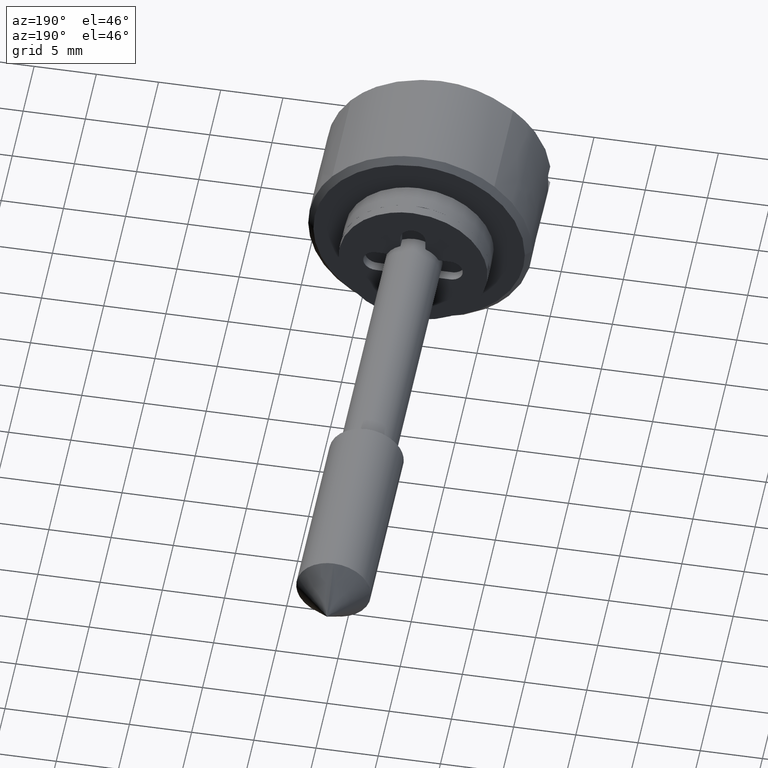
[diagram: clean part render]
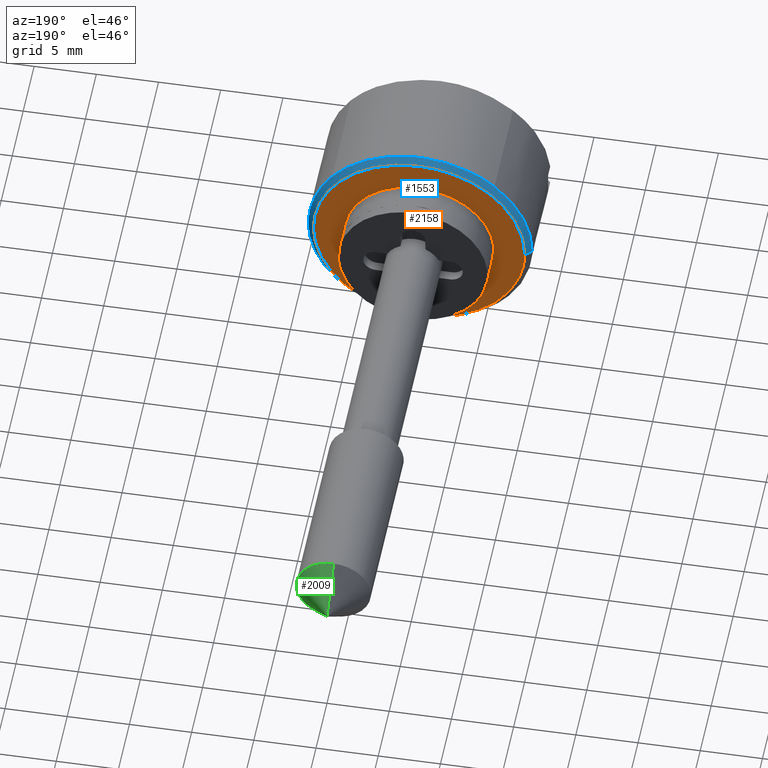
[diagram: same view with three faces highlighted in distinct colors, each labeled with its STEP entity id]
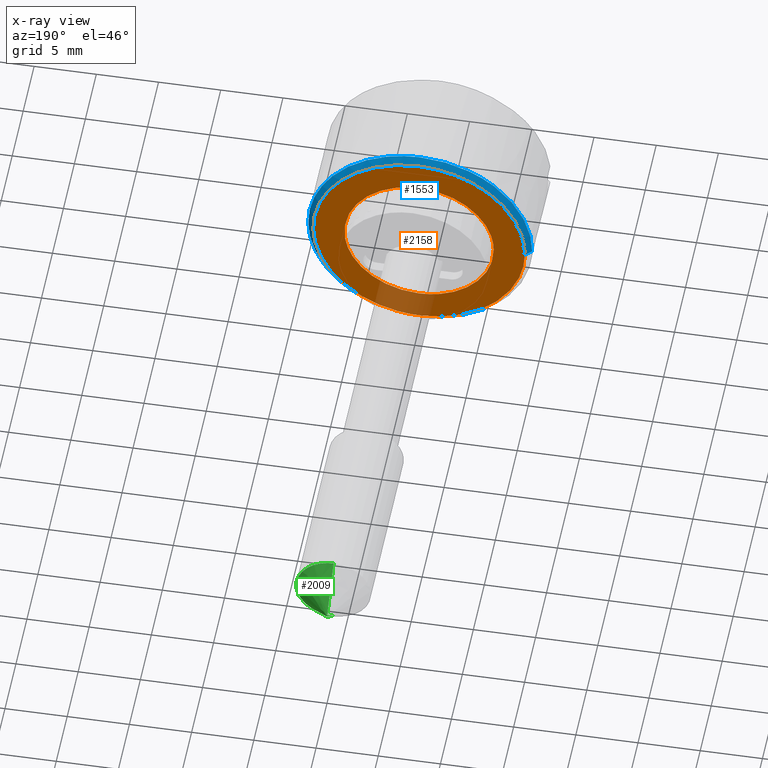
[diagram: x-ray of the same camera — body ghosted, the three highlighted faces saturated]
A machine part, auxiliary view with three faces highlighted in distinct colors.
The next image is the same camera in x-ray (body ghosted, the three faces saturated) — at least one of them is partly hidden behind the body in this view.
Their STEP definitions:

[orange] entity #2158 — the highlighted face is a freeform B-spline surface patch.
#1426=CARTESIAN_POINT('',(-2.000000000001152,4.878868866166072,-6.960361958028702));
#1427=VERTEX_POINT('',#1426);
#1433=CARTESIAN_POINT('',(-2.000000000000100,0.0,-8.500000000000000));
#1434=VERTEX_POINT('',#1433);
#1435=CARTESIAN_POINT('',(-2.000000000000100,0.0,-8.500000000000000));
#1436=CARTESIAN_POINT('',(-2.000000000000101,2.682368334920112,-8.500000000000002));
#1437=CARTESIAN_POINT('',(-2.000000000001153,4.878868866166072,-6.960361958028702));
#1445=(BOUNDED_CURVE()B_SPLINE_CURVE(2,(#1435,#1436,#1437),.UNSPECIFIED.,.F.,.U.)B_SPLINE_CURVE_WITH_KNOTS((3,3),(0.0,0.098673726203760),.UNSPECIFIED.)CURVE()GEOMETRIC_REPRESENTATION_ITEM()RATIONAL_B_SPLINE_CURVE((1.0,0.884396538879454,0.860049271925434))REPRESENTATION_ITEM(''));
#1446=EDGE_CURVE('',#1434,#1427,#1445,.T.);
#1448=CARTESIAN_POINT('',(-2.000000000000100,0.0,8.500000000000000));
#1449=VERTEX_POINT('',#1448);
#1450=CARTESIAN_POINT('',(-2.000000000000100,0.0,8.500000000000000));
#1451=CARTESIAN_POINT('',(-2.000000000000100,-8.500000000000002,8.500000000000002));
#1452=CARTESIAN_POINT('',(-2.000000000000100,-8.500000000000000,0.0));
#1453=CARTESIAN_POINT('',(-2.000000000000100,-8.500000000000002,-8.500000000000002));
#1454=CARTESIAN_POINT('',(-2.000000000000100,0.0,-8.500000000000000));
#1462=(BOUNDED_CURVE()B_SPLINE_CURVE(2,(#1450,#1451,#1452,#1453,#1454),.UNSPECIFIED.,.F.,.U.)B_SPLINE_CURVE_WITH_KNOTS((3,2,3),(0.500000000000000,0.750000000000000,1.0),.UNSPECIFIED.)CURVE()GEOMETRIC_REPRESENTATION_ITEM()RATIONAL_B_SPLINE_CURVE((1.0,0.707106781186548,1.0,0.707106781186548,1.0))REPRESENTATION_ITEM(''));
#1463=EDGE_CURVE('',#1449,#1434,#1462,.T.);
#1465=CARTESIAN_POINT('',(-1.999999692558892,8.499676040795690,-0.074175299278637));
#1466=VERTEX_POINT('',#1465);
#1467=CARTESIAN_POINT('',(-1.999999692558892,8.499676040795690,-0.074175299278637));
#1468=CARTESIAN_POINT('',(-2.000000000000100,8.500000000000000,-0.037088232187052));
#1469=CARTESIAN_POINT('',(-2.000000000000100,8.500000000000000,0.0));
#1470=CARTESIAN_POINT('',(-2.000000000000100,8.500000000000002,8.500000000000002));
#1471=CARTESIAN_POINT('',(-2.000000000000100,0.0,8.500000000000000));
#1479=(BOUNDED_CURVE()B_SPLINE_CURVE(2,(#1467,#1468,#1469,#1470,#1471),.UNSPECIFIED.,.F.,.U.)B_SPLINE_CURVE_WITH_KNOTS((3,2,3),(0.248460116017407,0.250000000000000,0.500000000000000),.UNSPECIFIED.)CURVE()GEOMETRIC_REPRESENTATION_ITEM()RATIONAL_B_SPLINE_CURVE((0.996414052058748,0.998195913694957,1.0,0.707106781186548,1.0))REPRESENTATION_ITEM(''));
#1480=EDGE_CURVE('',#1466,#1449,#1479,.T.);
#1582=CARTESIAN_POINT('',(-2.000000000001152,4.878868866166072,-6.960361958028702));
#1583=CARTESIAN_POINT('',(-2.000000000000101,8.461497066720575,-4.449117098601626));
#1584=CARTESIAN_POINT('',(-1.999999692558892,8.499676040795690,-0.074175299278637));
#1592=(BOUNDED_CURVE()B_SPLINE_CURVE(2,(#1582,#1583,#1584),.UNSPECIFIED.,.F.,.U.)B_SPLINE_CURVE_WITH_KNOTS((3,3),(0.098673726203760,0.248460116017407),.UNSPECIFIED.)CURVE()GEOMETRIC_REPRESENTATION_ITEM()RATIONAL_B_SPLINE_CURVE((0.860049271925434,0.823090201267243,0.996414052058748))REPRESENTATION_ITEM(''));
#1593=EDGE_CURVE('',#1427,#1466,#1592,.T.);
#1617=CARTESIAN_POINT('',(-2.000000000000115,0.0,-6.0));
#1618=VERTEX_POINT('',#1617);
#1619=CARTESIAN_POINT('',(-2.000000000000115,-5.953598272161385,-0.744760104767602));
#1620=VERTEX_POINT('',#1619);
#1621=CARTESIAN_POINT('',(-2.000000000000115,0.0,-6.0));
#1622=CARTESIAN_POINT('',(-2.000000000000116,-5.296198690261226,-6.000000000000001));
#1623=CARTESIAN_POINT('',(-2.000000000000116,-5.953598272161386,-0.744760104767602));
#1631=(BOUNDED_CURVE()B_SPLINE_CURVE(2,(#1621,#1622,#1623),.UNSPECIFIED.,.F.,.U.)B_SPLINE_CURVE_WITH_KNOTS((3,3),(0.0,0.228526295028897),.UNSPECIFIED.)CURVE()GEOMETRIC_REPRESENTATION_ITEM()RATIONAL_B_SPLINE_CURVE((1.0,0.732264791461895,0.954005864971808))REPRESENTATION_ITEM(''));
#1632=EDGE_CURVE('',#1618,#1620,#1631,.T.);
#1634=CARTESIAN_POINT('',(-2.000000000000453,5.999771612125104,0.052350761850252));
#1635=VERTEX_POINT('',#1634);
#1636=CARTESIAN_POINT('',(-2.000000000000453,5.999771612125104,0.052350761850252));
#1637=CARTESIAN_POINT('',(-2.000000000000115,6.000000000000001,0.026175879112923));
#1638=CARTESIAN_POINT('',(-2.000000000000115,6.0,0.0));
#1639=CARTESIAN_POINT('',(-2.000000000000114,6.0,-6.0));
#1640=CARTESIAN_POINT('',(-2.000000000000115,0.0,-6.0));
#1648=(BOUNDED_CURVE()B_SPLINE_CURVE(2,(#1636,#1637,#1638,#1639,#1640),.UNSPECIFIED.,.F.,.U.)B_SPLINE_CURVE_WITH_KNOTS((3,2,3),(0.748460353775743,0.750000000000000,1.0),.UNSPECIFIED.)CURVE()GEOMETRIC_REPRESENTATION_ITEM()RATIONAL_B_SPLINE_CURVE((0.996414602298726,0.998196192246173,1.0,0.707106781186548,1.0))REPRESENTATION_ITEM(''));
#1649=EDGE_CURVE('',#1635,#1618,#1648,.T.);
#1724=CARTESIAN_POINT('',(-2.000000000000115,0.0,6.0));
#1725=VERTEX_POINT('',#1724);
#1726=CARTESIAN_POINT('',(-2.000000000000116,-5.953598272161386,-0.744760104767602));
#1727=CARTESIAN_POINT('',(-2.000000000000116,-6.0,-0.373825565061391));
#1728=CARTESIAN_POINT('',(-2.000000000000115,-6.0,0.0));
#1729=CARTESIAN_POINT('',(-2.000000000000114,-6.0,6.0));
#1730=CARTESIAN_POINT('',(-2.000000000000115,0.0,6.0));
#1738=(BOUNDED_CURVE()B_SPLINE_CURVE(2,(#1726,#1727,#1728,#1729,#1730),.UNSPECIFIED.,.F.,.U.)B_SPLINE_CURVE_WITH_KNOTS((3,2,3),(0.228526295028897,0.250000000000000,0.500000000000000),.UNSPECIFIED.)CURVE()GEOMETRIC_REPRESENTATION_ITEM()RATIONAL_B_SPLINE_CURVE((0.954005864971808,0.974841989724653,1.0,0.707106781186548,1.0))REPRESENTATION_ITEM(''));
#1739=EDGE_CURVE('',#1620,#1725,#1738,.T.);
#1773=CARTESIAN_POINT('',(-2.000000000000115,0.0,6.0));
#1774=CARTESIAN_POINT('',(-2.000000000000116,5.947875641923462,6.0));
#1775=CARTESIAN_POINT('',(-2.000000000000453,5.999771612125104,0.052350761850252));
#1783=(BOUNDED_CURVE()B_SPLINE_CURVE(2,(#1773,#1774,#1775),.UNSPECIFIED.,.F.,.U.)B_SPLINE_CURVE_WITH_KNOTS((3,3),(0.500000000000000,0.748460353775743),.UNSPECIFIED.)CURVE()GEOMETRIC_REPRESENTATION_ITEM()RATIONAL_B_SPLINE_CURVE((1.0,0.708910588940375,0.996414602298726))REPRESENTATION_ITEM(''));
#1784=EDGE_CURVE('',#1725,#1635,#1783,.T.);
#2141=CARTESIAN_POINT('',(-2.000000000000100,-9.349133750554440,-9.349149967050701));
#2142=CARTESIAN_POINT('',(-2.000000000000100,9.348809551950804,-9.349149967050701));
#2143=CARTESIAN_POINT('',(-2.000000000000100,-9.349133750554438,9.349150423026236));
#2144=CARTESIAN_POINT('',(-2.000000000000100,9.348809551950804,9.349150423026236));
#2145=B_SPLINE_SURFACE_WITH_KNOTS('',1,1,((#2141,#2143),(#2142,#2144)),.UNSPECIFIED.,.F.,.F.,.U.,(2,2),(2,2),(0.0,18.697943302505241),(0.0,18.698300390076941),.UNSPECIFIED.);
#2146=ORIENTED_EDGE('',*,*,#1446,.T.);
#2147=ORIENTED_EDGE('',*,*,#1593,.T.);
#2148=ORIENTED_EDGE('',*,*,#1480,.T.);
#2149=ORIENTED_EDGE('',*,*,#1463,.T.);
#2150=EDGE_LOOP('',(#2146,#2147,#2148,#2149));
#2151=FACE_OUTER_BOUND('',#2150,.T.);
#2152=ORIENTED_EDGE('',*,*,#1784,.T.);
#2153=ORIENTED_EDGE('',*,*,#1649,.T.);
#2154=ORIENTED_EDGE('',*,*,#1632,.T.);
#2155=ORIENTED_EDGE('',*,*,#1739,.T.);
#2156=EDGE_LOOP('',(#2152,#2153,#2154,#2155));
#2157=FACE_BOUND('',#2156,.T.);
#2158=ADVANCED_FACE('',(#2151,#2157),#2145,.T.);

[blue] entity #1553 — the highlighted face is a freeform B-spline surface patch.
#1383=CARTESIAN_POINT('',(-1.987500000000102,4.871694058989055,-6.950126131633188));
#1384=CARTESIAN_POINT('',(-1.987500000000102,2.645031824215975,-8.510906033331208));
#1385=CARTESIAN_POINT('',(-1.987500000000101,-0.074066470042448,-8.487176822007138));
#1386=CARTESIAN_POINT('',(-1.987500000000102,-8.561243292049586,-8.413110351964690));
#1387=CARTESIAN_POINT('',(-1.987500000000101,-8.487176822007138,0.074066470042448));
#1388=CARTESIAN_POINT('',(-1.987500000000102,-8.413110351964690,8.561243292049586));
#1389=CARTESIAN_POINT('',(-1.987500000000101,0.074066470042448,8.487176822007138));
#1390=CARTESIAN_POINT('',(-1.987500000000102,8.561243292049586,8.413110351964690));
#1391=CARTESIAN_POINT('',(-1.987500000000101,8.487176822007138,-0.074066470042448));
#1392=CARTESIAN_POINT('',(-2.512812500000060,5.173215329723990,-7.380286736466609));
#1393=CARTESIAN_POINT('',(-2.512812500000059,2.808739427180158,-9.037667190990643));
#1394=CARTESIAN_POINT('',(-2.512812500000059,-0.078650628221438,-9.012469319716800));
#1395=CARTESIAN_POINT('',(-2.512812500000060,-9.091119947938237,-8.933818691495363));
#1396=CARTESIAN_POINT('',(-2.512812500000059,-9.012469319716800,0.078650628221438));
#1397=CARTESIAN_POINT('',(-2.512812500000060,-8.933818691495363,9.091119947938237));
#1398=CARTESIAN_POINT('',(-2.512812500000059,0.078650628221438,9.012469319716800));
#1399=CARTESIAN_POINT('',(-2.512812500000060,9.091119947938237,8.933818691495363));
#1400=CARTESIAN_POINT('',(-2.512812500000059,9.012469319716800,-0.078650628221438));
#1408=(BOUNDED_SURFACE()B_SPLINE_SURFACE(2,1,((#1383,#1392),(#1384,#1393),(#1385,#1394),(#1386,#1395),(#1387,#1396),(#1388,#1397),(#1389,#1398),(#1390,#1399),(#1391,#1400)),.UNSPECIFIED.,.F.,.F.,.U.)B_SPLINE_SURFACE_WITH_KNOTS((3,2,2,2,3),(2,2),(0.0,5.973166676201216,20.906083366704259,35.839000057207294,50.771916747710343),(0.0,1.0),.UNSPECIFIED.)GEOMETRIC_REPRESENTATION_ITEM()RATIONAL_B_SPLINE_SURFACE(((0.859411254969543,0.859411254969543),(0.882842712474619,0.882842712474619),(1.0,1.0),(0.707106781186548,0.707106781186548),(1.0,1.0),(0.707106781186548,0.707106781186548),(1.0,1.0),(0.707106781186548,0.707106781186548),(1.0,1.0)))REPRESENTATION_ITEM('')SURFACE());
#1409=CARTESIAN_POINT('',(-2.500000000001152,5.165861152410700,-7.369795014383618));
#1410=VERTEX_POINT('',#1409);
#1411=CARTESIAN_POINT('',(-2.500000000000060,0.0,-9.0));
#1412=VERTEX_POINT('',#1411);
#1413=CARTESIAN_POINT('',(-2.500000000001152,5.165861152410700,-7.369795014383618));
#1414=CARTESIAN_POINT('',(-2.500000000000060,2.840154707561898,-9.000000000000002));
#1415=CARTESIAN_POINT('',(-2.500000000000060,0.0,-9.0));
#1423=(BOUNDED_CURVE()B_SPLINE_CURVE(2,(#1413,#1414,#1415),.UNSPECIFIED.,.F.,.U.)B_SPLINE_CURVE_WITH_KNOTS((3,3),(0.901326273796258,1.0),.UNSPECIFIED.)CURVE()GEOMETRIC_REPRESENTATION_ITEM()RATIONAL_B_SPLINE_CURVE((0.860049271925442,0.884396538879475,1.0))REPRESENTATION_ITEM(''));
#1424=EDGE_CURVE('',#1410,#1412,#1423,.T.);
#1425=ORIENTED_EDGE('',*,*,#1424,.F.);
#1426=CARTESIAN_POINT('',(-2.000000000001152,4.878868866166072,-6.960361958028702));
#1427=VERTEX_POINT('',#1426);
#1428=CARTESIAN_POINT('',(-2.000000000001152,4.878868866166072,-6.960361958028702));
#1429=CARTESIAN_POINT('',(-2.500000000001152,5.165861152410700,-7.369795014383618));
#1430=QUASI_UNIFORM_CURVE('',1,(#1428,#1429),.UNSPECIFIED.,.F.,.U.);
#1431=EDGE_CURVE('',#1427,#1410,#1430,.T.);
#1432=ORIENTED_EDGE('',*,*,#1431,.F.);
#1433=CARTESIAN_POINT('',(-2.000000000000100,0.0,-8.500000000000000));
#1434=VERTEX_POINT('',#1433);
#1435=CARTESIAN_POINT('',(-2.000000000000100,0.0,-8.500000000000000));
#1436=CARTESIAN_POINT('',(-2.000000000000101,2.682368334920112,-8.500000000000002));
#1437=CARTESIAN_POINT('',(-2.000000000001153,4.878868866166072,-6.960361958028702));
#1445=(BOUNDED_CURVE()B_SPLINE_CURVE(2,(#1435,#1436,#1437),.UNSPECIFIED.,.F.,.U.)B_SPLINE_CURVE_WITH_KNOTS((3,3),(0.0,0.098673726203760),.UNSPECIFIED.)CURVE()GEOMETRIC_REPRESENTATION_ITEM()RATIONAL_B_SPLINE_CURVE((1.0,0.884396538879454,0.860049271925434))REPRESENTATION_ITEM(''));
#1446=EDGE_CURVE('',#1434,#1427,#1445,.T.);
#1447=ORIENTED_EDGE('',*,*,#1446,.F.);
#1448=CARTESIAN_POINT('',(-2.000000000000100,0.0,8.500000000000000));
#1449=VERTEX_POINT('',#1448);
#1450=CARTESIAN_POINT('',(-2.000000000000100,0.0,8.500000000000000));
#1451=CARTESIAN_POINT('',(-2.000000000000100,-8.500000000000002,8.500000000000002));
#1452=CARTESIAN_POINT('',(-2.000000000000100,-8.500000000000000,0.0));
#1453=CARTESIAN_POINT('',(-2.000000000000100,-8.500000000000002,-8.500000000000002));
#1454=CARTESIAN_POINT('',(-2.000000000000100,0.0,-8.500000000000000));
#1462=(BOUNDED_CURVE()B_SPLINE_CURVE(2,(#1450,#1451,#1452,#1453,#1454),.UNSPECIFIED.,.F.,.U.)B_SPLINE_CURVE_WITH_KNOTS((3,2,3),(0.500000000000000,0.750000000000000,1.0),.UNSPECIFIED.)CURVE()GEOMETRIC_REPRESENTATION_ITEM()RATIONAL_B_SPLINE_CURVE((1.0,0.707106781186548,1.0,0.707106781186548,1.0))REPRESENTATION_ITEM(''));
#1463=EDGE_CURVE('',#1449,#1434,#1462,.T.);
#1464=ORIENTED_EDGE('',*,*,#1463,.F.);
#1465=CARTESIAN_POINT('',(-1.999999692558892,8.499676040795690,-0.074175299278637));
#1466=VERTEX_POINT('',#1465);
#1467=CARTESIAN_POINT('',(-1.999999692558892,8.499676040795690,-0.074175299278637));
#1468=CARTESIAN_POINT('',(-2.000000000000100,8.500000000000000,-0.037088232187052));
#1469=CARTESIAN_POINT('',(-2.000000000000100,8.500000000000000,0.0));
#1470=CARTESIAN_POINT('',(-2.000000000000100,8.500000000000002,8.500000000000002));
#1471=CARTESIAN_POINT('',(-2.000000000000100,0.0,8.500000000000000));
#1479=(BOUNDED_CURVE()B_SPLINE_CURVE(2,(#1467,#1468,#1469,#1470,#1471),.UNSPECIFIED.,.F.,.U.)B_SPLINE_CURVE_WITH_KNOTS((3,2,3),(0.248460116017407,0.250000000000000,0.500000000000000),.UNSPECIFIED.)CURVE()GEOMETRIC_REPRESENTATION_ITEM()RATIONAL_B_SPLINE_CURVE((0.996414052058748,0.998195913694957,1.0,0.707106781186548,1.0))REPRESENTATION_ITEM(''));
#1480=EDGE_CURVE('',#1466,#1449,#1479,.T.);
#1481=ORIENTED_EDGE('',*,*,#1480,.F.);
#1482=CARTESIAN_POINT('',(-2.500000000001944,8.999657307579305,-0.078538819499149));
#1483=VERTEX_POINT('',#1482);
#1484=CARTESIAN_POINT('',(-1.999999692558892,8.499676040795690,-0.074175299278637));
#1485=CARTESIAN_POINT('',(-2.500000000001944,8.999657307579305,-0.078538819499149));
#1486=QUASI_UNIFORM_CURVE('',1,(#1484,#1485),.UNSPECIFIED.,.F.,.U.);
#1487=EDGE_CURVE('',#1466,#1483,#1486,.T.);
#1488=ORIENTED_EDGE('',*,*,#1487,.T.);
#1489=CARTESIAN_POINT('',(-2.500000000000060,5.963579269917588,6.740602516942143));
#1490=VERTEX_POINT('',#1489);
#1491=CARTESIAN_POINT('',(-2.500000000000060,5.963579269917588,6.740602516942142));
#1492=CARTESIAN_POINT('',(-2.500000000000060,9.0,4.054205318004370));
#1493=CARTESIAN_POINT('',(-2.500000000000060,9.0,0.0));
#1494=CARTESIAN_POINT('',(-2.500000000000060,8.999999999999998,-0.039270157400074));
#1495=CARTESIAN_POINT('',(-2.500000000001944,8.999657307579305,-0.078538819499149));
#1503=(BOUNDED_CURVE()B_SPLINE_CURVE(2,(#1491,#1492,#1493,#1494,#1495),.UNSPECIFIED.,.F.,.U.)B_SPLINE_CURVE_WITH_KNOTS((3,2,3),(0.615779861978577,0.750000000000000,0.751539894335526),.UNSPECIFIED.)CURVE()GEOMETRIC_REPRESENTATION_ITEM()RATIONAL_B_SPLINE_CURVE((0.854350162732624,0.842751326981278,1.0,0.998195901565741,0.996414028099159))REPRESENTATION_ITEM(''));
#1504=EDGE_CURVE('',#1490,#1483,#1503,.T.);
#1505=ORIENTED_EDGE('',*,*,#1504,.F.);
#1506=CARTESIAN_POINT('',(-2.500000000000060,0.0,9.0));
#1507=VERTEX_POINT('',#1506);
#1508=CARTESIAN_POINT('',(-2.500000000000060,0.0,9.0));
#1509=CARTESIAN_POINT('',(-2.500000000000060,3.409794089615664,9.000000000000002));
#1510=CARTESIAN_POINT('',(-2.500000000000060,5.963579269917588,6.740602516942142));
#1518=(BOUNDED_CURVE()B_SPLINE_CURVE(2,(#1508,#1509,#1510),.UNSPECIFIED.,.F.,.U.)B_SPLINE_CURVE_WITH_KNOTS((3,3),(0.500000000000000,0.615779861978577),.UNSPECIFIED.)CURVE()GEOMETRIC_REPRESENTATION_ITEM()RATIONAL_B_SPLINE_CURVE((1.0,0.864355454205269,0.854350162732624))REPRESENTATION_ITEM(''));
#1519=EDGE_CURVE('',#1507,#1490,#1518,.T.);
#1520=ORIENTED_EDGE('',*,*,#1519,.F.);
#1521=CARTESIAN_POINT('',(-2.500000000000061,-7.070639771251634,5.568307931965846));
#1522=VERTEX_POINT('',#1521);
#1523=CARTESIAN_POINT('',(-2.500000000000062,-7.070639771251636,5.568307931965846));
#1524=CARTESIAN_POINT('',(-2.500000000000060,-4.368095908588074,9.0));
#1525=CARTESIAN_POINT('',(-2.500000000000060,0.0,9.0));
#1533=(BOUNDED_CURVE()B_SPLINE_CURVE(2,(#1523,#1524,#1525),.UNSPECIFIED.,.F.,.U.)B_SPLINE_CURVE_WITH_KNOTS((3,3),(0.357127509740917,0.500000000000000),.UNSPECIFIED.)CURVE()GEOMETRIC_REPRESENTATION_ITEM()RATIONAL_B_SPLINE_CURVE((0.856547236429575,0.832614465792494,1.0))REPRESENTATION_ITEM(''));
#1534=EDGE_CURVE('',#1522,#1507,#1533,.T.);
#1535=ORIENTED_EDGE('',*,*,#1534,.F.);
#1536=CARTESIAN_POINT('',(-2.500000000000060,0.0,-9.0));
#1537=CARTESIAN_POINT('',(-2.500000000000060,-9.0,-9.0));
#1538=CARTESIAN_POINT('',(-2.500000000000060,-9.0,0.0));
#1539=CARTESIAN_POINT('',(-2.500000000000060,-9.0,3.118404977624842));
#1540=CARTESIAN_POINT('',(-2.500000000000062,-7.070639771251636,5.568307931965846));
#1548=(BOUNDED_CURVE()B_SPLINE_CURVE(2,(#1536,#1537,#1538,#1539,#1540),.UNSPECIFIED.,.F.,.U.)B_SPLINE_CURVE_WITH_KNOTS((3,2,3),(0.0,0.250000000000000,0.357127509740917),.UNSPECIFIED.)CURVE()GEOMETRIC_REPRESENTATION_ITEM()RATIONAL_B_SPLINE_CURVE((1.0,0.707106781186547,1.0,0.874492315394053,0.856547236429575))REPRESENTATION_ITEM(''));
#1549=EDGE_CURVE('',#1412,#1522,#1548,.T.);
#1550=ORIENTED_EDGE('',*,*,#1549,.F.);
#1551=EDGE_LOOP('',(#1425,#1432,#1447,#1464,#1481,#1488,#1505,#1520,#1535,#1550));
#1552=FACE_OUTER_BOUND('',#1551,.T.);
#1553=ADVANCED_FACE('',(#1552),#1408,.T.);

[green] entity #2009 — the highlighted face is a freeform B-spline surface patch.
#1039=CARTESIAN_POINT('',(37.000000000000007,0.0,-3.000000000000017));
#1040=VERTEX_POINT('',#1039);
#1056=CARTESIAN_POINT('',(37.0,-2.994404395263399,-0.183145618640563));
#1057=VERTEX_POINT('',#1056);
#1058=CARTESIAN_POINT('',(37.0,0.0,-3.0));
#1059=CARTESIAN_POINT('',(37.000000000000007,-2.822118200649117,-3.000000000000000));
#1060=CARTESIAN_POINT('',(37.0,-2.994404395263400,-0.183145618640563));
#1068=(BOUNDED_CURVE()B_SPLINE_CURVE(2,(#1058,#1059,#1060),.UNSPECIFIED.,.F.,.U.)B_SPLINE_CURVE_WITH_KNOTS((3,3),(0.0,0.478665924475641),.UNSPECIFIED.)CURVE()GEOMETRIC_REPRESENTATION_ITEM()RATIONAL_B_SPLINE_CURVE((1.0,0.719603993288025,0.976072041664312))REPRESENTATION_ITEM(''));
#1069=EDGE_CURVE('',#1040,#1057,#1068,.T.);
#1136=CARTESIAN_POINT('',(37.000000000000007,0.0,3.000000000000018));
#1137=VERTEX_POINT('',#1136);
#1183=CARTESIAN_POINT('',(37.0,-2.994404395263399,-0.183145618640563));
#1184=CARTESIAN_POINT('',(37.000000000000014,-3.000000000000000,-0.091658289931860));
#1185=CARTESIAN_POINT('',(37.0,-3.0,0.0));
#1186=CARTESIAN_POINT('',(37.0,-3.0,3.0));
#1187=CARTESIAN_POINT('',(37.0,0.0,3.0));
#1195=(BOUNDED_CURVE()B_SPLINE_CURVE(2,(#1183,#1184,#1185,#1186,#1187),.UNSPECIFIED.,.F.,.U.)B_SPLINE_CURVE_WITH_KNOTS((3,2,3),(0.478665924475641,0.500000000000000,1.0),.UNSPECIFIED.)CURVE()GEOMETRIC_REPRESENTATION_ITEM()RATIONAL_B_SPLINE_CURVE((0.976072041664312,0.987502787898522,1.0,0.707106781186548,1.0))REPRESENTATION_ITEM(''));
#1196=EDGE_CURVE('',#1057,#1137,#1195,.T.);
#1975=CARTESIAN_POINT('',(40.0,0.0,0.0));
#1976=CARTESIAN_POINT('',(36.923124999999992,0.080543197824795,3.075820631784277));
#1977=CARTESIAN_POINT('',(40.0,0.0,0.0));
#1978=CARTESIAN_POINT('',(36.923124999999999,-3.160695452878609,3.160695452878619));
#1979=CARTESIAN_POINT('',(40.0,0.0,0.0));
#1980=CARTESIAN_POINT('',(36.923124999999992,-3.075820631784277,-0.080543197824786));
#1981=CARTESIAN_POINT('',(40.0,0.0,0.0));
#1982=CARTESIAN_POINT('',(36.923124999999999,-2.990945810689945,-3.321781848528190));
#1983=CARTESIAN_POINT('',(40.0,0.0,0.0));
#1984=CARTESIAN_POINT('',(36.923124999999992,0.241408830167617,-3.067390021230228));
#1992=(BOUNDED_SURFACE()B_SPLINE_SURFACE(1,2,((#1975,#1977,#1979,#1981,#1983),(#1976,#1978,#1980,#1982,#1984)),.UNSPECIFIED.,.F.,.F.,.U.)B_SPLINE_SURFACE_WITH_KNOTS((2,2),(3,2,3),(0.0,1.0),(0.0,1.0,2.0),.UNSPECIFIED.)GEOMETRIC_REPRESENTATION_ITEM()RATIONAL_B_SPLINE_SURFACE(((1.0,0.688354575693754,1.0,0.688354575693754,1.0),(1.0,0.688354575693754,1.0,0.688354575693754,1.0)))REPRESENTATION_ITEM('')SURFACE());
#1993=CARTESIAN_POINT('',(40.0,0.0,0.0));
#1994=VERTEX_POINT('',#1993);
#1995=CARTESIAN_POINT('',(40.0,0.0,0.0));
#1996=CARTESIAN_POINT('',(37.000000000000007,0.0,3.000000000000018));
#1997=QUASI_UNIFORM_CURVE('',1,(#1995,#1996),.UNSPECIFIED.,.F.,.U.);
#1998=EDGE_CURVE('',#1994,#1137,#1997,.T.);
#1999=ORIENTED_EDGE('',*,*,#1998,.T.);
#2000=ORIENTED_EDGE('',*,*,#1196,.F.);
#2001=ORIENTED_EDGE('',*,*,#1069,.F.);
#2002=CARTESIAN_POINT('',(40.0,0.0,0.0));
#2003=CARTESIAN_POINT('',(37.000000000000007,0.0,-3.000000000000017));
#2004=QUASI_UNIFORM_CURVE('',1,(#2002,#2003),.UNSPECIFIED.,.F.,.U.);
#2005=EDGE_CURVE('',#1994,#1040,#2004,.T.);
#2006=ORIENTED_EDGE('',*,*,#2005,.F.);
#2007=EDGE_LOOP('',(#1999,#2000,#2001,#2006));
#2008=FACE_OUTER_BOUND('',#2007,.T.);
#2009=ADVANCED_FACE('',(#2008),#1992,.T.);